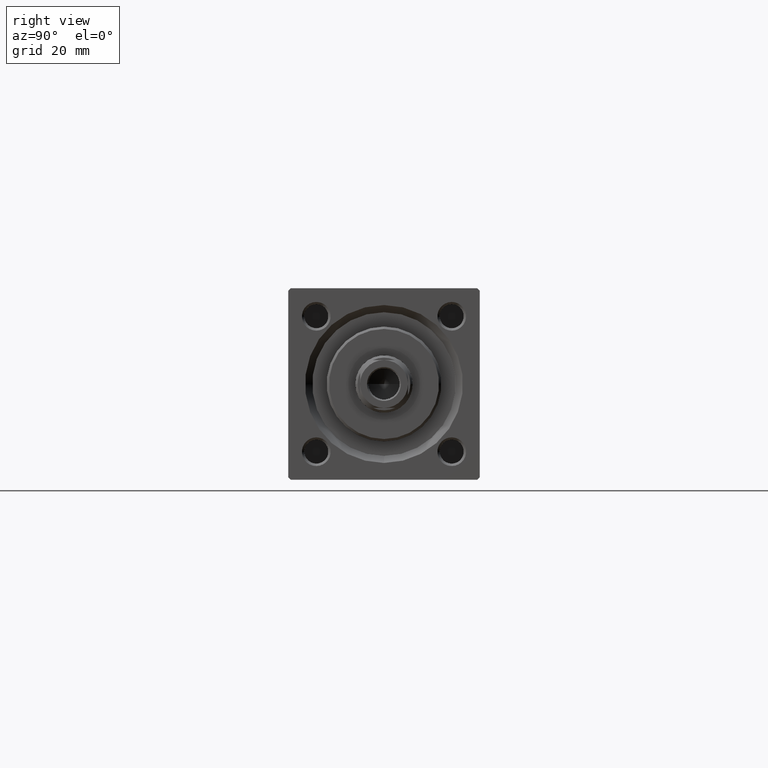
[diagram: clean part render]
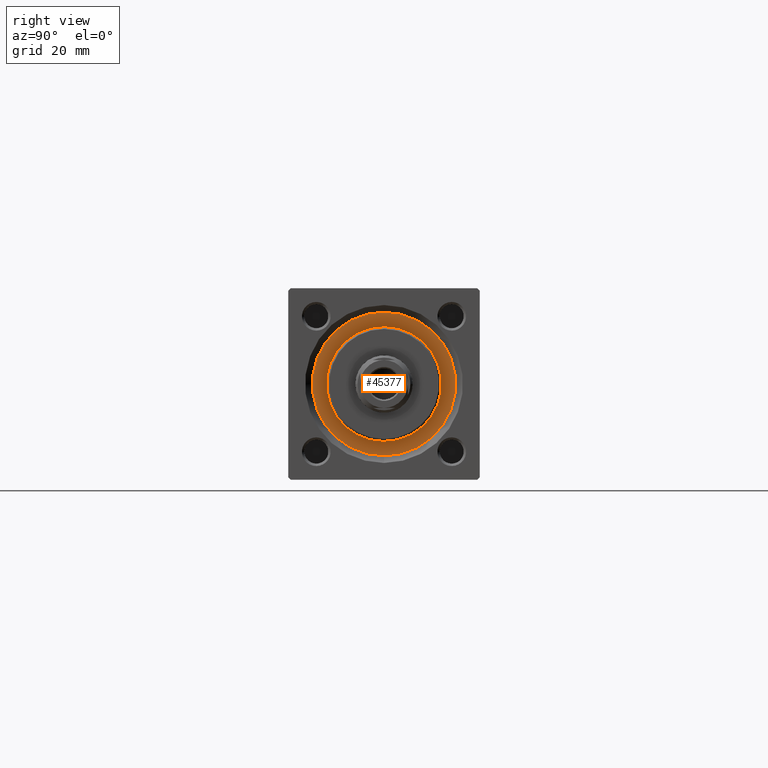
[diagram: same view with one face highlighted and labeled with its STEP entity id]
A machine part, right view. The second image highlights one B-rep face of the part: STEP entity #45377.
In plain terms, the highlighted planar face has unit normal (1, 0, 0).
Its self-contained STEP definition (entity closure, byte-faithful):
#1806 = CIRCLE ( 'NONE', #33396, 12.00000000000000178 ) ;
#1978 = EDGE_LOOP ( 'NONE', ( #12650, #30658 ) ) ;
#2348 = DIRECTION ( 'NONE',  ( 1.000000000000000000, 0.000000000000000000, 0.000000000000000000 ) ) ;
#2666 = CIRCLE ( 'NONE', #17245, 12.00000000000000178 ) ;
#4380 = DIRECTION ( 'NONE',  ( 1.000000000000000000, 0.000000000000000000, 0.000000000000000000 ) ) ;
#7008 = DIRECTION ( 'NONE',  ( 1.000000000000000000, 0.000000000000000000, 0.000000000000000000 ) ) ;
#7079 = FACE_OUTER_BOUND ( 'NONE', #1978, .T. ) ;
#7279 = CARTESIAN_POINT ( 'NONE',  ( 12.00000000000000178, 1.469576158976824144E-15, 28.69999999999999929 ) ) ;
#7412 = DIRECTION ( 'NONE',  ( 0.000000000000000000, 0.000000000000000000, 1.000000000000000000 ) ) ;
#8311 = AXIS2_PLACEMENT_3D ( 'NONE', #32149, #35224, #31414 ) ;
#8323 = AXIS2_PLACEMENT_3D ( 'NONE', #47219, #32234, #28688 ) ;
#9935 = EDGE_CURVE ( 'NONE', #23677, #27281, #1806, .T. ) ;
#11161 = EDGE_CURVE ( 'NONE', #19844, #29318, #30187, .T. ) ;
#11569 = CARTESIAN_POINT ( 'NONE',  ( 0.000000000000000000, 0.000000000000000000, 28.69999999999999929 ) ) ;
#11661 = DIRECTION ( 'NONE',  ( 0.000000000000000000, 0.000000000000000000, 1.000000000000000000 ) ) ;
#12650 = ORIENTED_EDGE ( 'NONE', *, *, #11161, .T. ) ;
#14943 = FACE_BOUND ( 'NONE', #47825, .T. ) ;
#17245 = AXIS2_PLACEMENT_3D ( 'NONE', #18295, #11661, #2348 ) ;
#17904 = ORIENTED_EDGE ( 'NONE', *, *, #9935, .F. ) ;
#18295 = CARTESIAN_POINT ( 'NONE',  ( 0.000000000000000000, 0.000000000000000000, 28.69999999999999929 ) ) ;
#19213 = CARTESIAN_POINT ( 'NONE',  ( 15.00000000000000000, 1.836970198721029589E-15, 28.69999999999999929 ) ) ;
#19844 = VERTEX_POINT ( 'NONE', #36923 ) ;
#23677 = VERTEX_POINT ( 'NONE', #7279 ) ;
#27021 = ORIENTED_EDGE ( 'NONE', *, *, #46316, .F. ) ;
#27281 = VERTEX_POINT ( 'NONE', #41162 ) ;
#28688 = DIRECTION ( 'NONE',  ( 1.000000000000000000, 0.000000000000000000, 0.000000000000000000 ) ) ;
#29318 = VERTEX_POINT ( 'NONE', #19213 ) ;
#30187 = CIRCLE ( 'NONE', #8323, 15.00000000000000000 ) ;
#30658 = ORIENTED_EDGE ( 'NONE', *, *, #34165, .T. ) ;
#31414 = DIRECTION ( 'NONE',  ( 1.000000000000000000, 0.000000000000000000, -0.000000000000000000 ) ) ;
#32149 = CARTESIAN_POINT ( 'NONE',  ( 0.000000000000000000, 0.000000000000000000, 28.69999999999999929 ) ) ;
#32234 = DIRECTION ( 'NONE',  ( 0.000000000000000000, 0.000000000000000000, 1.000000000000000000 ) ) ;
#33396 = AXIS2_PLACEMENT_3D ( 'NONE', #11569, #38696, #7008 ) ;
#34165 = EDGE_CURVE ( 'NONE', #29318, #19844, #40404, .T. ) ;
#35224 = DIRECTION ( 'NONE',  ( 0.000000000000000000, 0.000000000000000000, 1.000000000000000000 ) ) ;
#35303 = CARTESIAN_POINT ( 'NONE',  ( 0.000000000000000000, 0.000000000000000000, 28.69999999999999929 ) ) ;
#36923 = CARTESIAN_POINT ( 'NONE',  ( -15.00000000000000000, 0.000000000000000000, 28.69999999999999929 ) ) ;
#37985 = AXIS2_PLACEMENT_3D ( 'NONE', #35303, #7412, #4380 ) ;
#38696 = DIRECTION ( 'NONE',  ( 0.000000000000000000, 0.000000000000000000, 1.000000000000000000 ) ) ;
#40404 = CIRCLE ( 'NONE', #37985, 15.00000000000000000 ) ;
#41162 = CARTESIAN_POINT ( 'NONE',  ( -12.00000000000000178, 0.000000000000000000, 28.69999999999999929 ) ) ;
#41804 = PLANE ( 'NONE',  #8311 ) ;
#45377 = ADVANCED_FACE ( 'NONE', ( #14943, #7079 ), #41804, .T. ) ;
#46316 = EDGE_CURVE ( 'NONE', #27281, #23677, #2666, .T. ) ;
#47219 = CARTESIAN_POINT ( 'NONE',  ( 0.000000000000000000, 0.000000000000000000, 28.69999999999999929 ) ) ;
#47825 = EDGE_LOOP ( 'NONE', ( #27021, #17904 ) ) ;